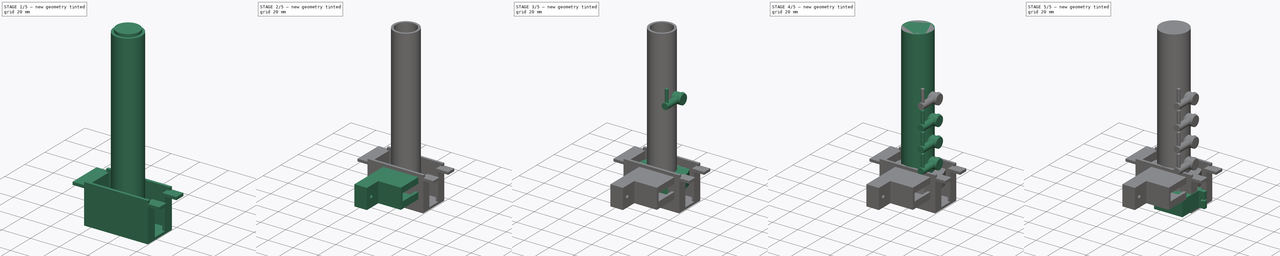
[diagram: build sequence overview — one tinted view per stage of 5, left to right]
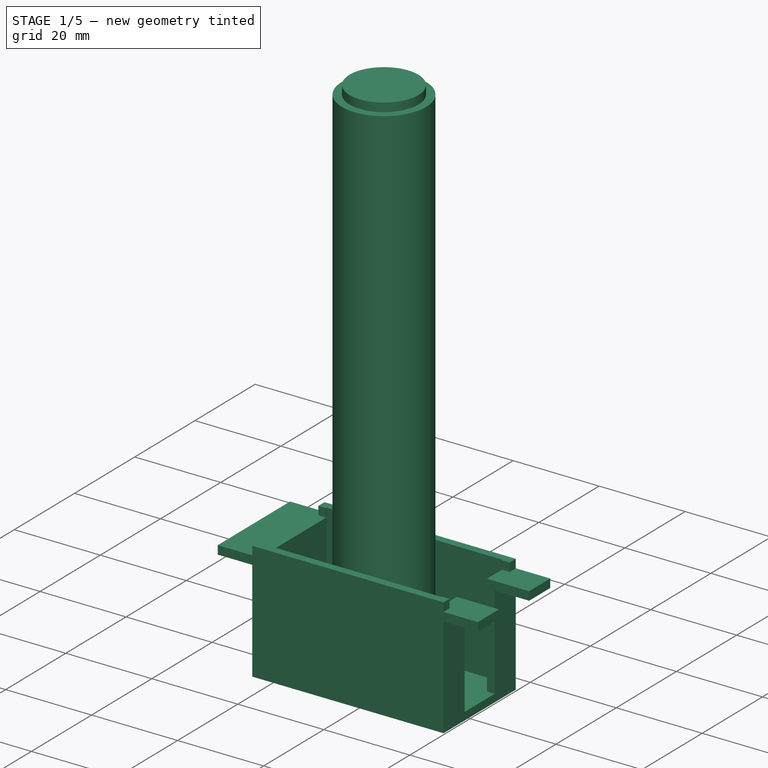
[diagram: stage 1 of 5 — iso view after this stage's code; geometry added in this stage tinted green]
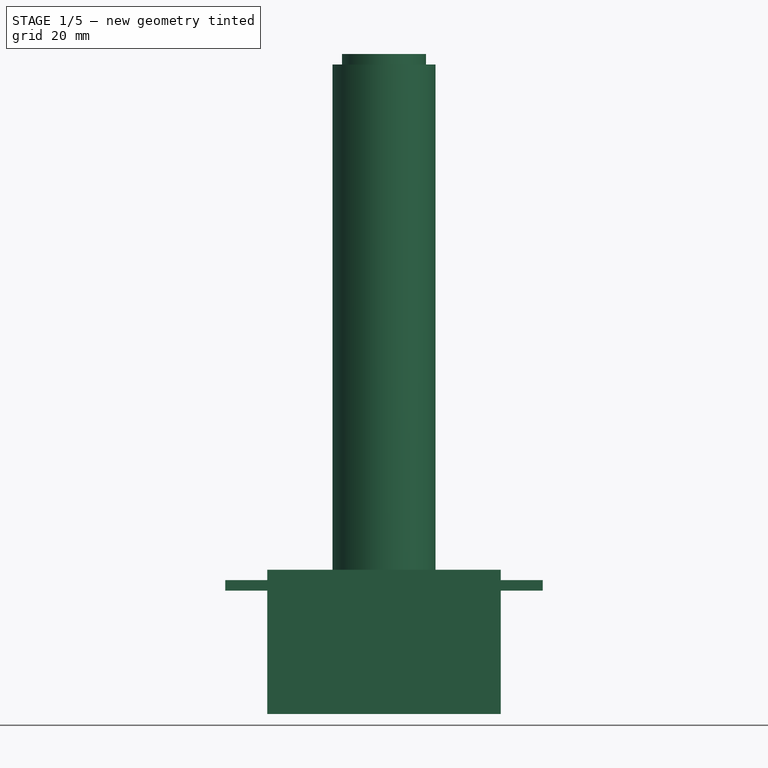
[diagram: stage 1 of 5 — front view after this stage's code; geometry added in this stage tinted green]
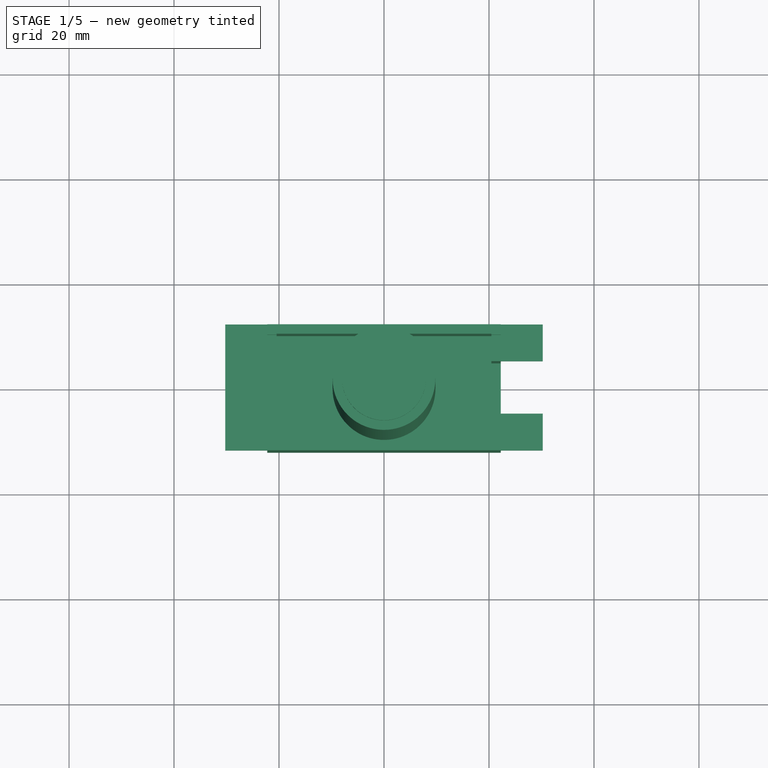
[diagram: stage 1 of 5 — top view after this stage's code; geometry added in this stage tinted green]
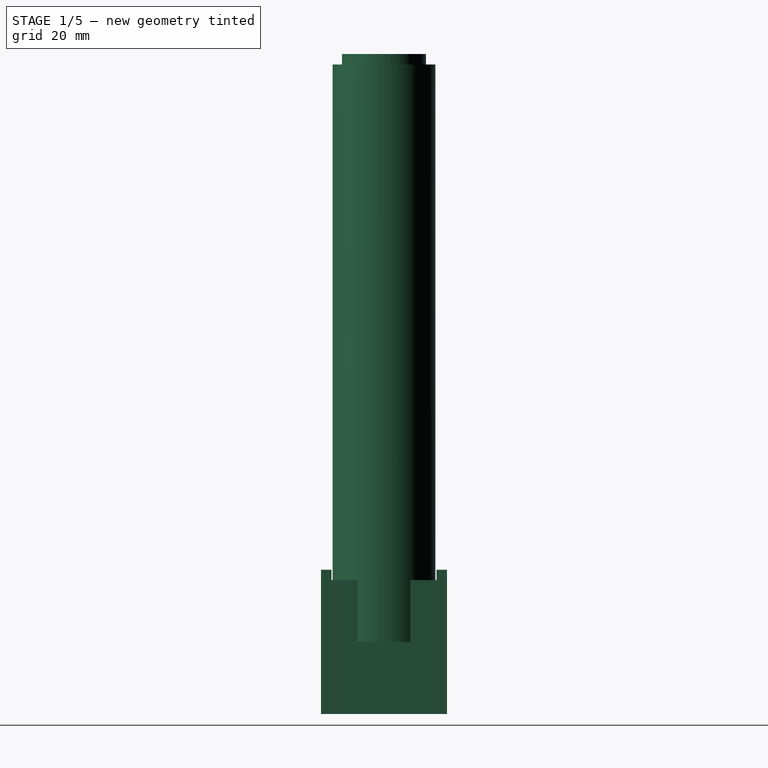
[diagram: stage 1 of 5 — right view after this stage's code; geometry added in this stage tinted green]
FCSTD DOCUMENT  (FreeCAD 0.20R29177 +426 (Git))
Label: servo_holders
License: All rights reserved
LicenseURL: http://en.wikipedia.org/wiki/All_rights_reserved
objects: Part::Cylinder×16, Sketcher::SketchObject×14, Part::Cut×10, Part::Box×10, Part::Feature×8, Part::Extrusion×7, Part::MultiFuse×6, Spreadsheet::Sheet×1, App::DocumentObjectGroup×1, App::Link×1, Part::Chamfer×1, Part::Fuse×1
note: 73 computed .brp shape members not serialized (recipe doc carries the construction recipe); baked Part::Feature solids carry a one-line shape summary decoded from their .brp

FEATURE [Part::Feature] _motor_servo002  label="motor servo002"
  Placement = pos=(7.8,-28.4,37.43) rot=(0,0,1;0rad)
  shape: bbox 32.1 x 32.1 x 12.3 mm, 36 faces, 4 solids (baked)
FEATURE [Part::Feature] _motor_servo003  label="motor servo003"
  Placement = pos=(7.8,-28.4,53.07) rot=(0,0,1;0rad)
  shape: bbox 32.1 x 32.1 x 12.3 mm, 36 faces, 4 solids (baked)
FEATURE [Part::Feature] _motor_servo004  label="motor servo004"
  Placement = pos=(7.8,-28.4,68.71) rot=(0,0,1;0rad)
  shape: bbox 32.1 x 32.1 x 12.3 mm, 36 faces, 4 solids (baked)
FEATURE [Part::Cylinder] Cylinder013  label="negative"
  Angle = 360
  AttacherType = Attacher::AttachEngine3D
  FirstAngle = 0
  Height = 110
  Placement = pos=(0,0,2) rot=(0,0,1;0rad)
  Radius = 8
  SecondAngle = 0
FEATURE [Part::Cylinder] Cylinder015  label="main_axis002"
  Angle = 360
  AttacherType = Attacher::AttachEngine3D
  FirstAngle = 0
  Height = 110
  Radius = 9.8
  SecondAngle = 0
FEATURE [Part::Box] cube
  AttacherType = Attacher::AttachEngine3D
  Height = 27.5
  Length = 44.5
  Placement = pos=(-22.25,-12,-13.75) rot=(0,0,1;0rad)
  Width = 24
FEATURE [Part::Box] cube001
  AttacherType = Attacher::AttachEngine3D
  Height = 2
  Length = 60.5
  Placement = pos=(-30.25,-12,9.75) rot=(0,0,1;0rad)
  Width = 24
FEATURE [Part::Fuse] union
  Base = -> cube
  Tool = -> cube001
FEATURE [Part::Box] cube002
  AttacherType = Attacher::AttachEngine3D
  Height = 27.9
  Length = 40.9
  Placement = pos=(-20.45,-10.2,-11.95) rot=(0,0,1;0rad)
  Width = 20.4
FEATURE [Part::Box] cube003
  AttacherType = Attacher::AttachEngine3D
  Height = 3
  Length = 60.5
  Placement = pos=(-30.25,-10,11.75) rot=(0,0,1;0rad)
  Width = 20
FEATURE [Part::Box] cube004
  AttacherType = Attacher::AttachEngine3D
  Height = 47.5
  Length = 30
  Placement = pos=(5,-5,-11.95) rot=(0,0,1;0rad)
  Width = 10
FEATURE [Part::MultiFuse] union001
  Shapes = -> [cube002,cube003,cube004]
FEATURE [Part::Cut] difference
  Base = -> union
  Tool = -> union001
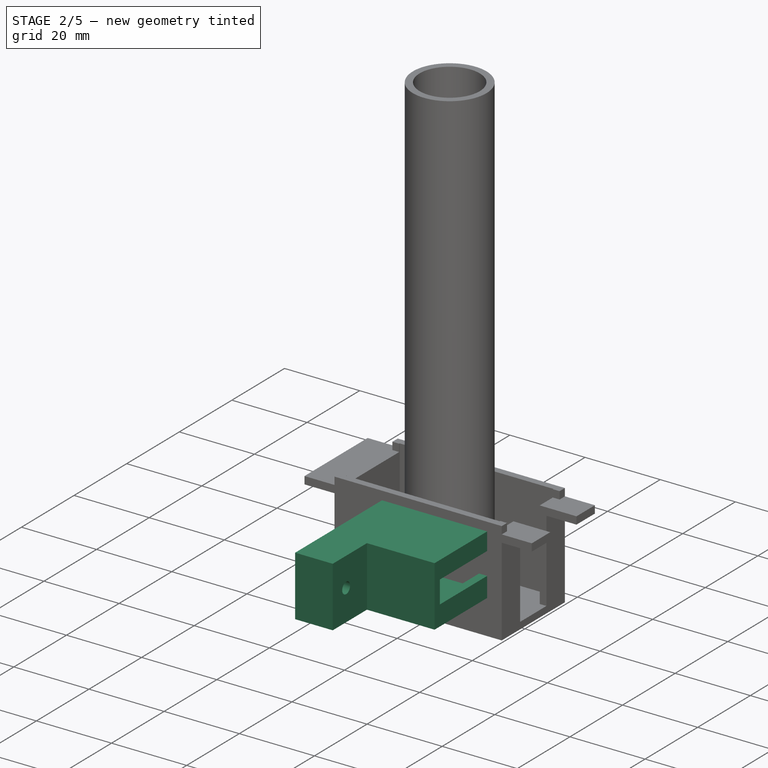
[diagram: stage 2 of 5 — iso view after this stage's code; geometry added in this stage tinted green]
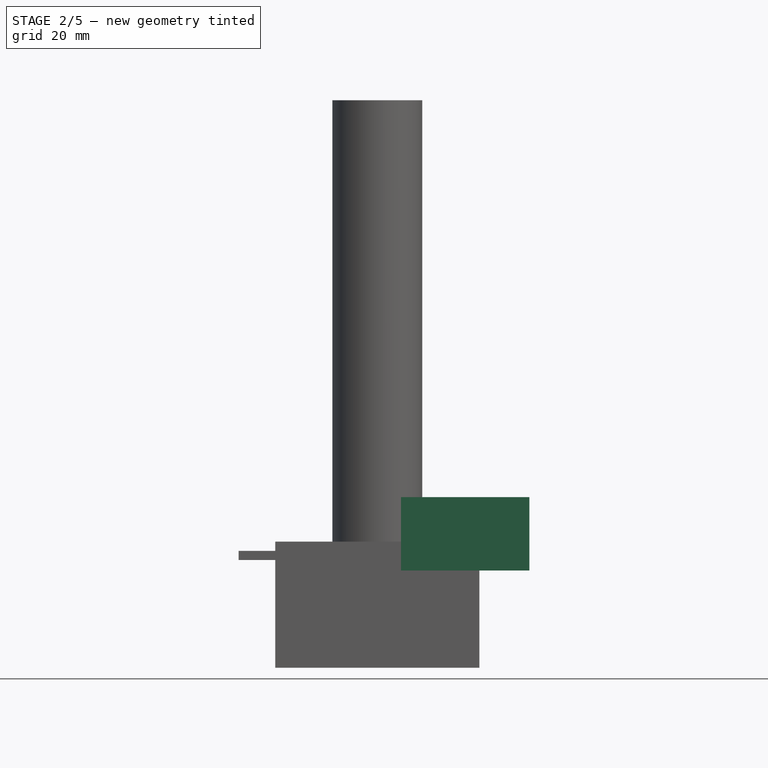
[diagram: stage 2 of 5 — front view after this stage's code; geometry added in this stage tinted green]
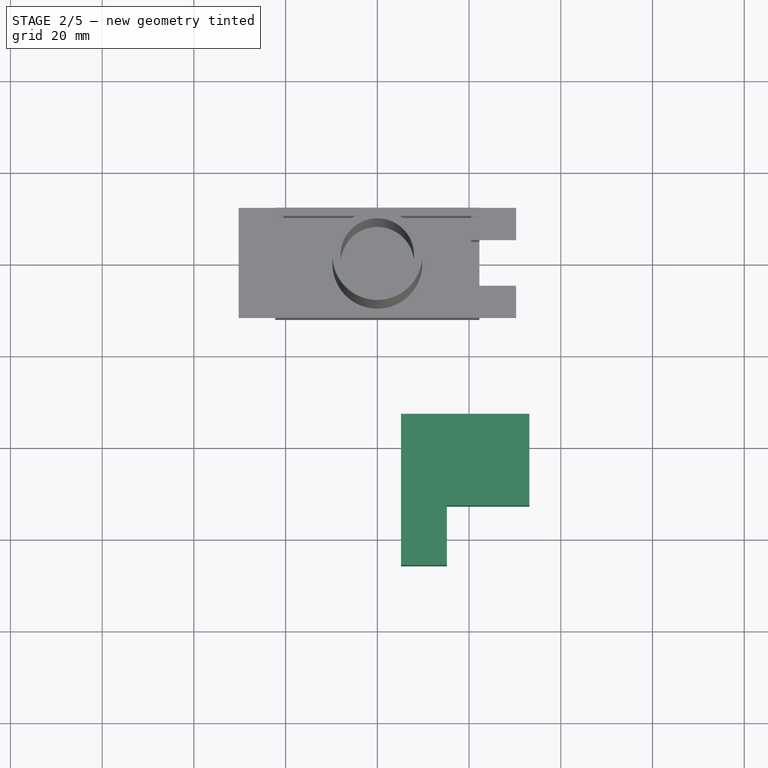
[diagram: stage 2 of 5 — top view after this stage's code; geometry added in this stage tinted green]
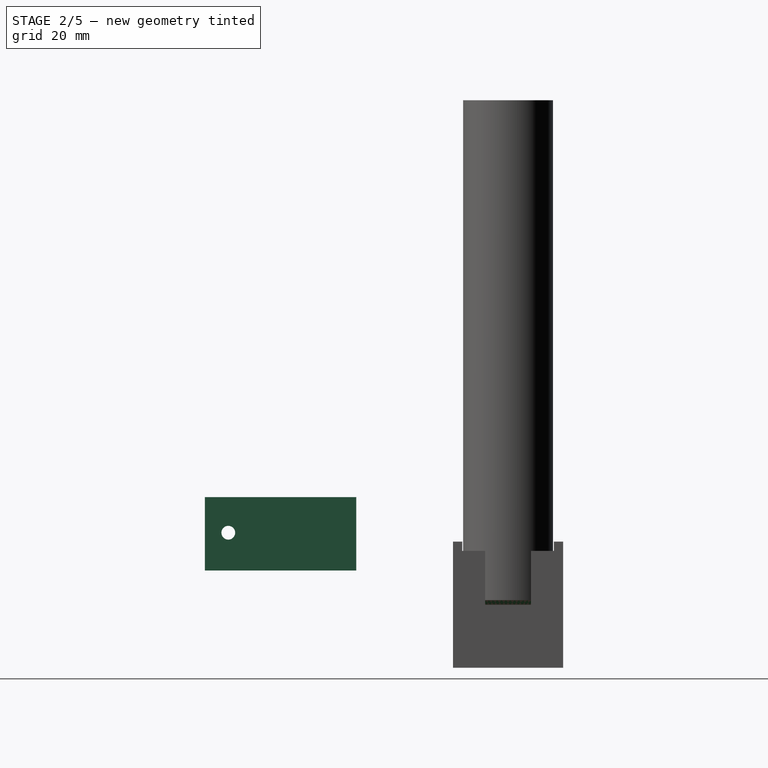
[diagram: stage 2 of 5 — right view after this stage's code; geometry added in this stage tinted green]
FEATURE [Part::Box] Box  label="Cube"
  AttacherType = Attacher::AttachEngine3D
  Height = 16
  Length = 28
  Placement = pos=(5.15,-53.1,7.45) rot=(0,0,1;0rad)
  Width = 20
FEATURE [Part::Box] Box001  label="Cube001"
  AttacherType = Attacher::AttachEngine3D
  Height = 6
  Length = 6
  Placement = pos=(30.15,-51.1,12.75) rot=(0,0,1;0rad)
  Width = 21
FEATURE [Part::Cut] Cut001
  Base = -> Box
  Tool = -> Box001
FEATURE [Part::Feature] Part__Feature  label="MakerBeam Profile 10x10x350 v13"
  shape: bbox 350.3 x 10 x 10 mm, 115 faces (baked)
FEATURE [Part::Feature] Part__Feature001  label="MakerBeam Profile 10x10x350 v014"
  Placement = pos=(0,-61,0) rot=(0,-1,0;1.5708rad)
  shape: bbox 10 x 10 x 350.3 mm, 115 faces (baked)
FEATURE [Part::Feature] Part__Feature002  label="MakerBeam Profile 10x10x350 v015"
  Placement = pos=(0,-350,0) rot=(0,0,1;1.5708rad)
  shape: bbox 10 x 350.3 x 10 mm, 115 faces (baked)
FEATURE [Part::Box] Box003  label="Cube003"
  AttacherType = Attacher::AttachEngine3D
  Height = 16
  Length = 10
  Placement = pos=(5.15,-66.1,7.45) rot=(0,0,1;0rad)
  Width = 14.5
FEATURE [Part::Feature] BOLTS_part  label="Hex socket countersunk head screw M3 20.0"
  Placement = pos=(22,-61,15.7) rot=(0,-1,0;1.5708rad)
  shape: bbox 20 x 6 x 6 mm, 12 faces (baked)
FEATURE [Part::Cut] Cut004
  Base = -> Box003
  Tool = -> BOLTS_part
FEATURE [Part::Box] Box004  label="Cube004"
  AttacherType = Attacher::AttachEngine3D
  Height = 13
  Length = 23.6
  Placement = pos=(7.4,-51.1,9.2) rot=(0,0,1;0rad)
  Width = 30
FEATURE [Part::Cut] Cut005
  Base = -> Cut001
  Tool = -> Box004
FEATURE [Part::MultiFuse] Fusion004
  Shapes = -> [Cut004,Cut005]
FEATURE [App::Link] Link  label="main_axis003"
  LinkedObject = -> Cylinder015
FEATURE [Part::Cut] Cut
  Base = -> Link
  Tool = -> Cylinder013
FEATURE [Part::Chamfer] Chamfer  label="central_tube"
  Base = -> Cut
  Edges = 1 edges r=1: [Edge3]
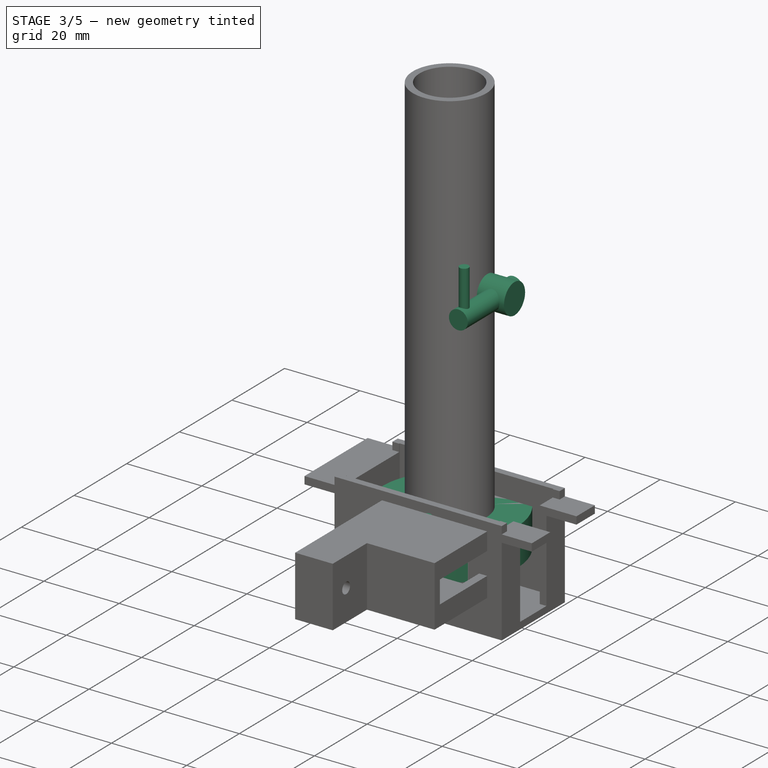
[diagram: stage 3 of 5 — iso view after this stage's code; geometry added in this stage tinted green]
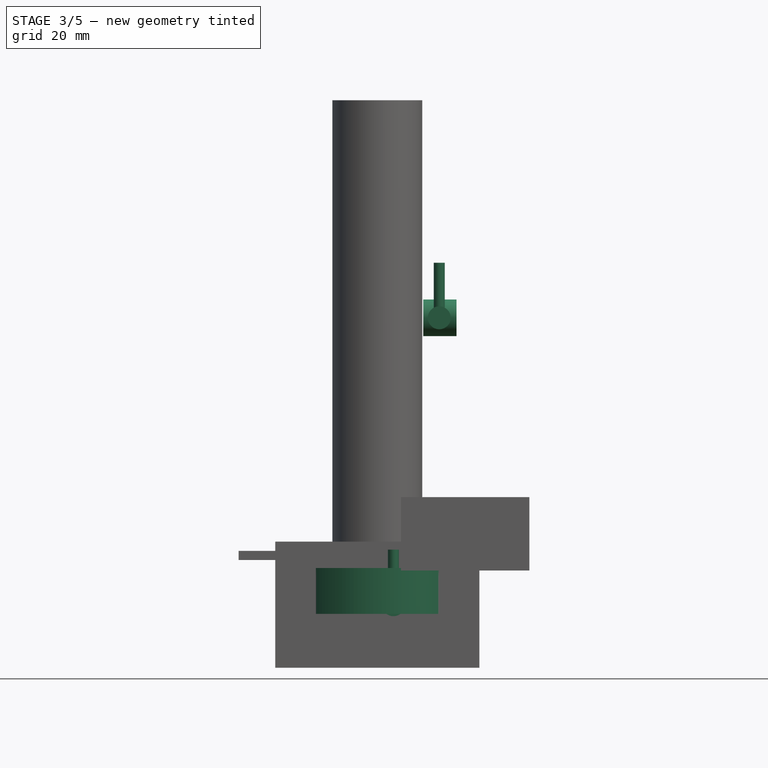
[diagram: stage 3 of 5 — front view after this stage's code; geometry added in this stage tinted green]
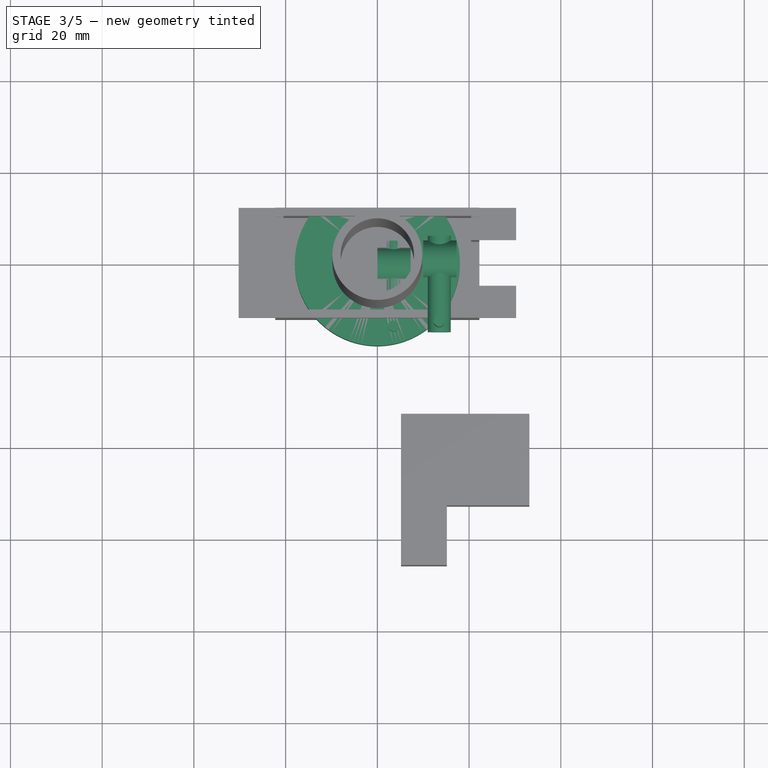
[diagram: stage 3 of 5 — top view after this stage's code; geometry added in this stage tinted green]
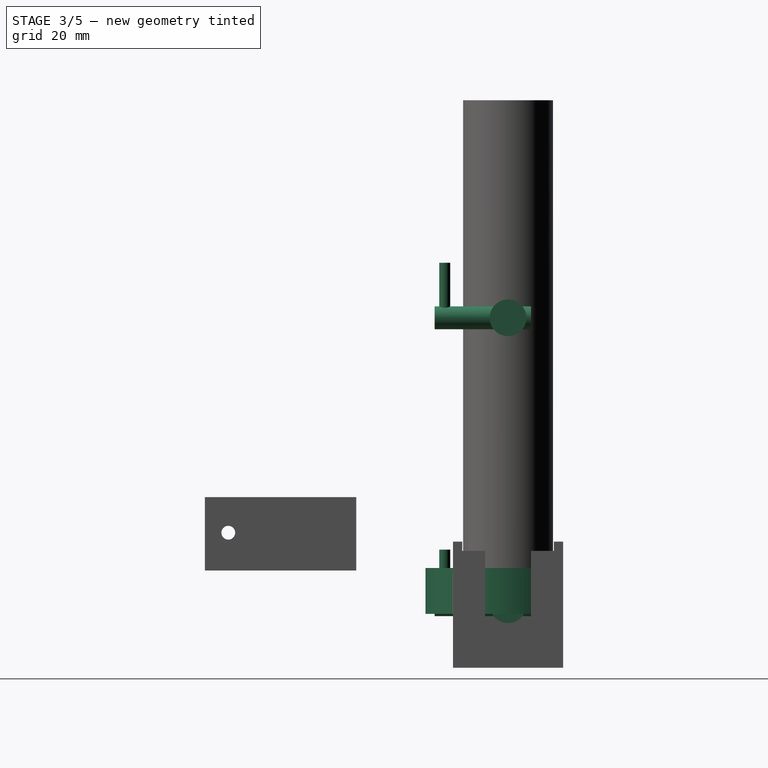
[diagram: stage 3 of 5 — right view after this stage's code; geometry added in this stage tinted green]
FEATURE [Part::Cylinder] Cylinder007
  Angle = 360
  AttacherType = Attacher::AttachEngine3D
  FirstAngle = 0
  Height = 7.26
  Placement = pos=(0,0,0) rot=(0,1,0;1.5708rad)
  Radius = 4
  SecondAngle = 0
FEATURE [Part::Cylinder] Cylinder008
  Angle = 360
  AttacherType = Attacher::AttachEngine3D
  FirstAngle = 0
  Height = 12
  Placement = pos=(3.5,-13.8,0) rot=(1,0,0;0rad)
  Radius = 1.2
  SecondAngle = 0
FEATURE [Part::Cylinder] Cylinder009
  Angle = 360
  AttacherType = Attacher::AttachEngine3D
  FirstAngle = 0
  Height = 21
  Placement = pos=(3.5,5,0) rot=(1,0,0;1.5708rad)
  Radius = 2.5
  SecondAngle = 0
FEATURE [Part::Cylinder] Cylinder010
  Angle = 360
  AttacherType = Attacher::AttachEngine3D
  FirstAngle = 0
  Height = 7.26
  Placement = pos=(0,0,0) rot=(0,1,0;1.5708rad)
  Radius = 4
  SecondAngle = 0
FEATURE [Part::Cylinder] Cylinder011
  Angle = 360
  AttacherType = Attacher::AttachEngine3D
  FirstAngle = 0
  Height = 12
  Placement = pos=(3.5,-13.8,0) rot=(1,0,0;0rad)
  Radius = 1.2
  SecondAngle = 0
FEATURE [Part::Cylinder] Cylinder012
  Angle = 360
  AttacherType = Attacher::AttachEngine3D
  FirstAngle = 0
  Height = 21
  Placement = pos=(3.5,5,0) rot=(1,0,0;1.5708rad)
  Radius = 2.5
  SecondAngle = 0
FEATURE [Part::MultiFuse] Fusion003  label="valve003"
  Placement = pos=(10,0,62.56) rot=(0,0,1;0rad)
  Shapes = -> [Cylinder010,Cylinder012,Cylinder011]
FEATURE [Part::Cylinder] Cylinder014  label="Cylinder"
  Angle = 360
  AttacherType = Attacher::AttachEngine3D
  FirstAngle = 0
  Height = 10
  Placement = pos=(0,0,-2) rot=(0,0,1;0rad)
  Radius = 18
  SecondAngle = 0
FEATURE [Part::Cut] Cut002  label="main_axis_fit"
  Base = -> Cylinder014
  Tool = -> Cylinder015
FEATURE [Part::Box] Box002  label="Cube002"
  AttacherType = Attacher::AttachEngine3D
  Height = 15
  Length = 10
  Placement = pos=(-22,-18.5,-3) rot=(0,0,1;0rad)
  Width = 35
FEATURE [Part::Cut] Cut003  label="main_axis_holder"
  Base = -> Cut002
  Placement = pos=(0,0,0) rot=(0,0,-1;1.5708rad)
  Tool = -> Box002
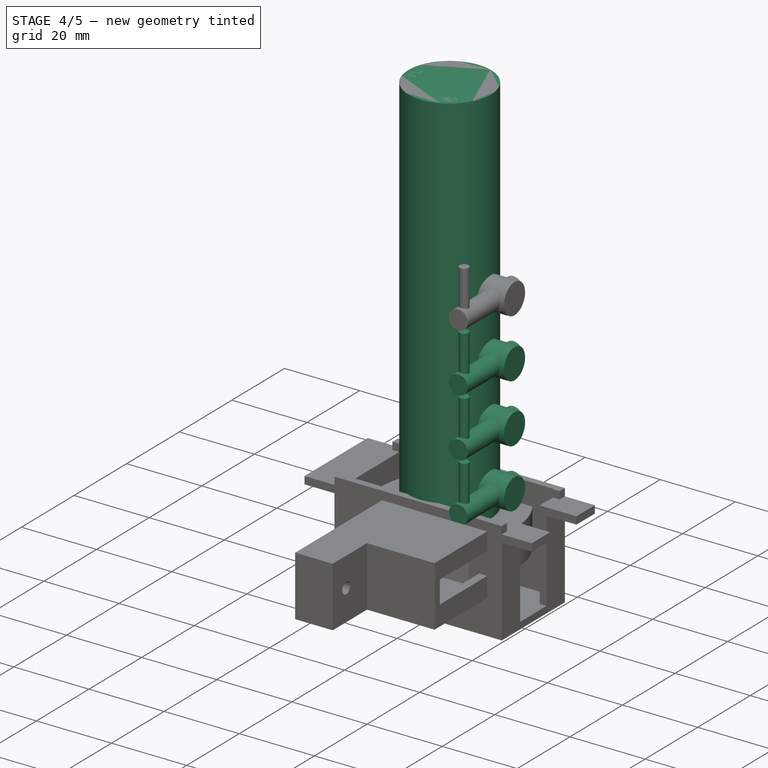
[diagram: stage 4 of 5 — iso view after this stage's code; geometry added in this stage tinted green]
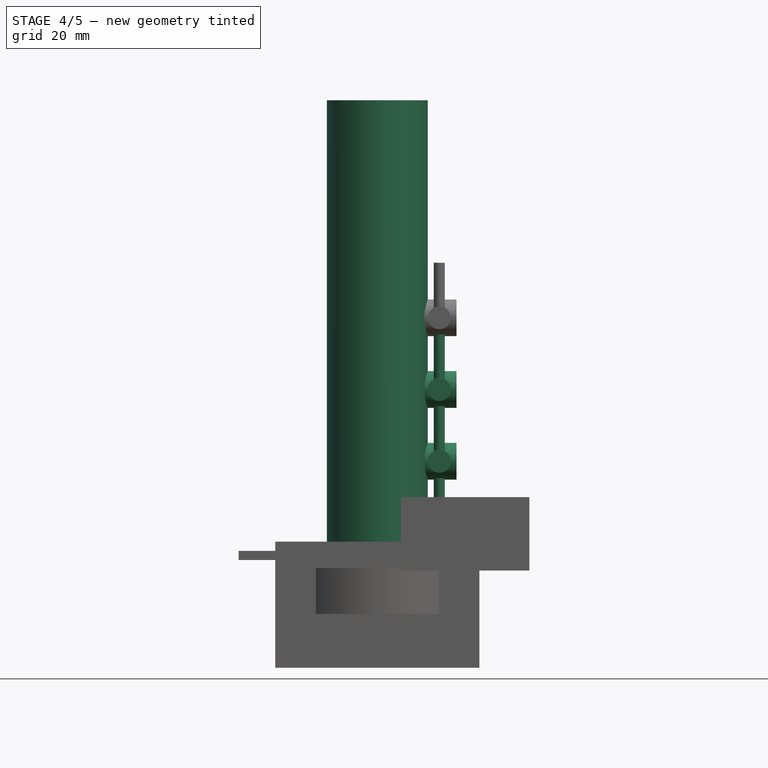
[diagram: stage 4 of 5 — front view after this stage's code; geometry added in this stage tinted green]
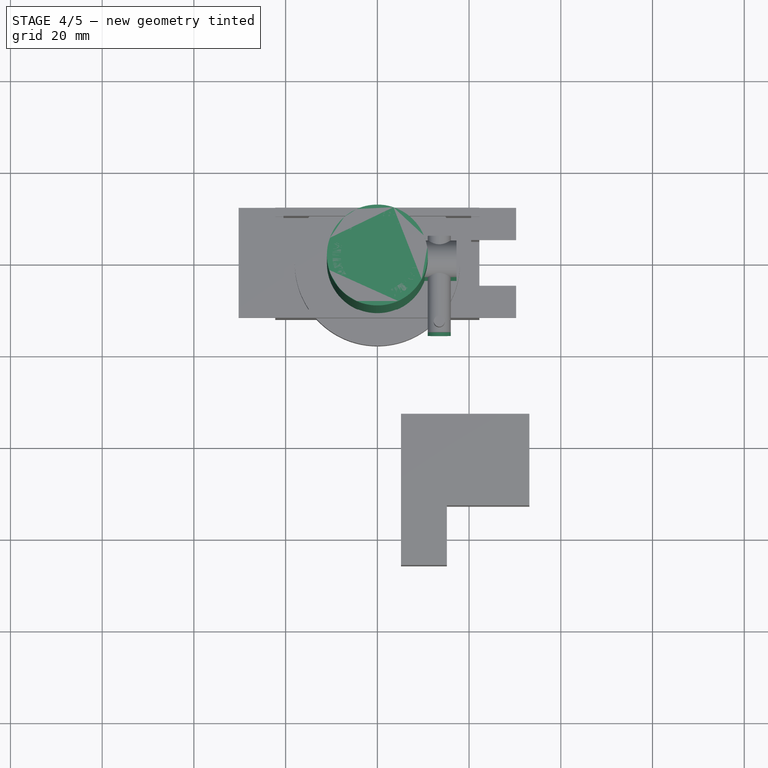
[diagram: stage 4 of 5 — top view after this stage's code; geometry added in this stage tinted green]
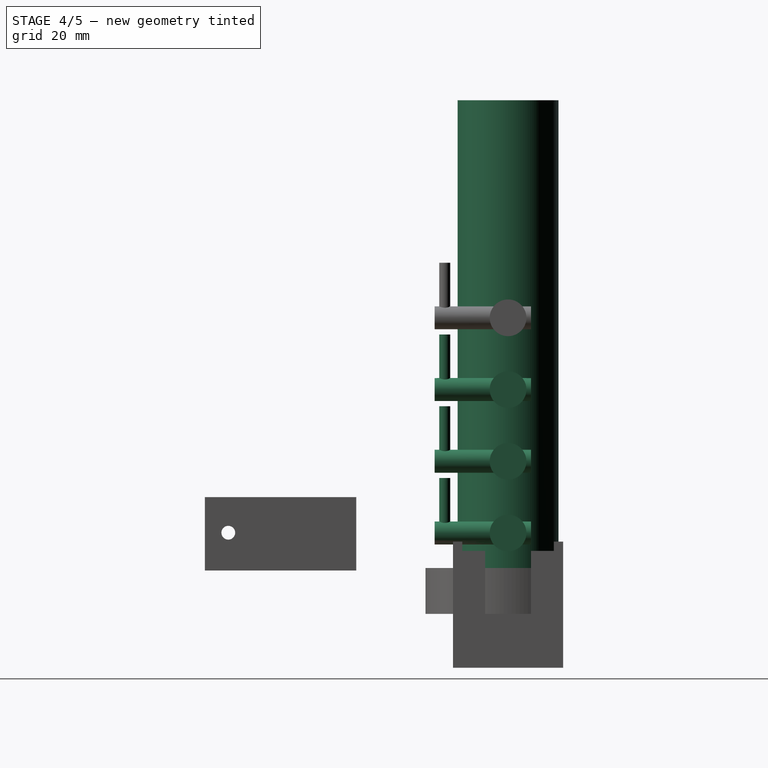
[diagram: stage 4 of 5 — right view after this stage's code; geometry added in this stage tinted green]
FEATURE [App::DocumentObjectGroup] _motor_servo  label="motor servo"
  Group = -> [Sketch1,Extrusion1,Sketch2,Extrusion2,Sketch3,Extrusion3,Sketch4,Extrusion4,Sketch5,Extrusion5,Sketch6,Extrusion6,Sketch7,Extrusion7]
FEATURE [Part::Cylinder] Cylinder  label="positive"
  Angle = 360
  AttacherType = Attacher::AttachEngine3D
  FirstAngle = 0
  Height = 110
  Radius = 11
  SecondAngle = 0
FEATURE [Part::Feature] _motor_servo001  label="motor servo001"
  Placement = pos=(7.8,-28.4,21.79) rot=(0,0,1;0rad)
  shape: bbox 32.1 x 32.1 x 12.3 mm, 36 faces, 4 solids (baked)
FEATURE [Part::Cylinder] Cylinder001
  Angle = 360
  AttacherType = Attacher::AttachEngine3D
  FirstAngle = 0
  Height = 7.26
  Placement = pos=(0,0,0) rot=(0,1,0;1.5708rad)
  Radius = 4
  SecondAngle = 0
FEATURE [Part::Cylinder] Cylinder002
  Angle = 360
  AttacherType = Attacher::AttachEngine3D
  FirstAngle = 0
  Height = 21
  Placement = pos=(3.5,5,0) rot=(1,0,0;1.5708rad)
  Radius = 2.5
  SecondAngle = 0
FEATURE [Part::Cylinder] Cylinder003
  Angle = 360
  AttacherType = Attacher::AttachEngine3D
  FirstAngle = 0
  Height = 12
  Placement = pos=(3.5,-13.8,0) rot=(1,0,0;0rad)
  Radius = 1.2
  SecondAngle = 0
FEATURE [Part::MultiFuse] Fusion  label="valve"
  Placement = pos=(10,0,15.64) rot=(0,0,1;0rad)
  Shapes = -> [Cylinder001,Cylinder002,Cylinder003]
FEATURE [Part::Cylinder] Cylinder004
  Angle = 360
  AttacherType = Attacher::AttachEngine3D
  FirstAngle = 0
  Height = 7.26
  Placement = pos=(0,0,0) rot=(0,1,0;1.5708rad)
  Radius = 4
  SecondAngle = 0
FEATURE [Part::Cylinder] Cylinder005
  Angle = 360
  AttacherType = Attacher::AttachEngine3D
  FirstAngle = 0
  Height = 12
  Placement = pos=(3.5,-13.8,0) rot=(1,0,0;0rad)
  Radius = 1.2
  SecondAngle = 0
FEATURE [Part::Cylinder] Cylinder006
  Angle = 360
  AttacherType = Attacher::AttachEngine3D
  FirstAngle = 0
  Height = 21
  Placement = pos=(3.5,5,0) rot=(1,0,0;1.5708rad)
  Radius = 2.5
  SecondAngle = 0
FEATURE [Part::MultiFuse] Fusion001  label="valve001"
  Placement = pos=(10,0,31.28) rot=(0,0,1;0rad)
  Shapes = -> [Cylinder004,Cylinder006,Cylinder005]
FEATURE [Part::MultiFuse] Fusion002  label="valve002"
  Placement = pos=(10,0,46.92) rot=(0,0,1;0rad)
  Shapes = -> [Cylinder007,Cylinder009,Cylinder008]
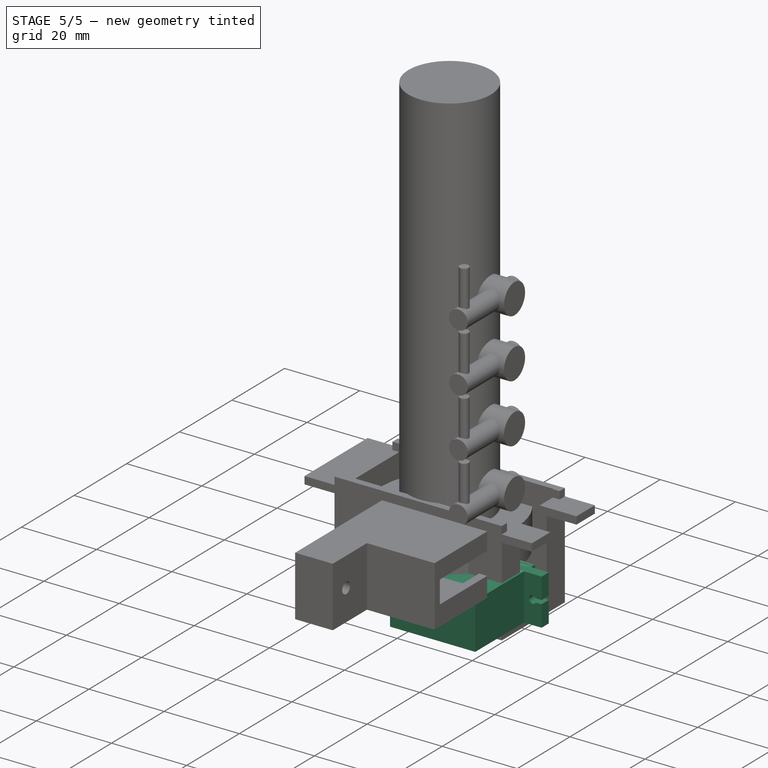
[diagram: stage 5 of 5 — iso view after this stage's code; geometry added in this stage tinted green]
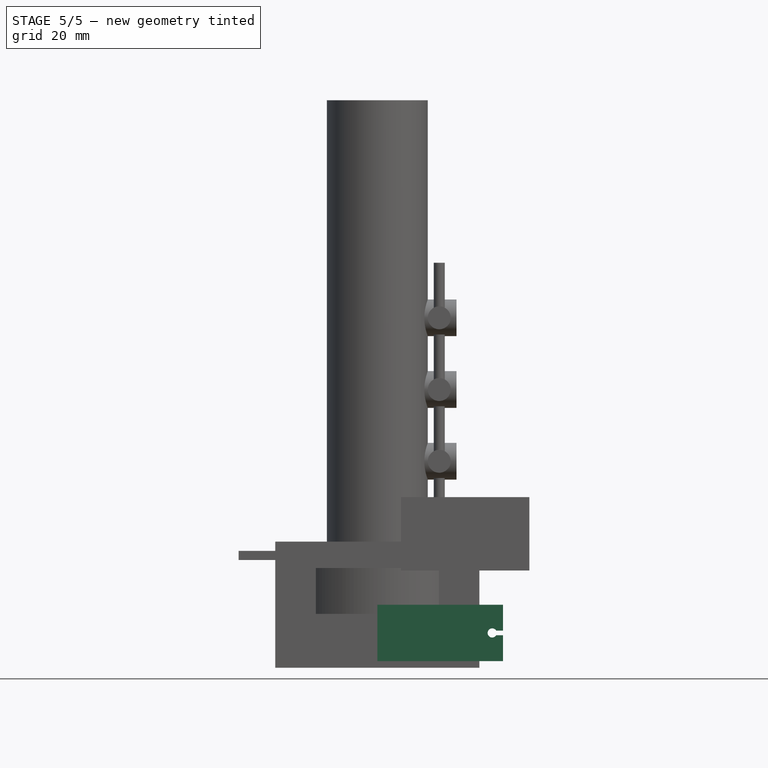
[diagram: stage 5 of 5 — front view after this stage's code; geometry added in this stage tinted green]
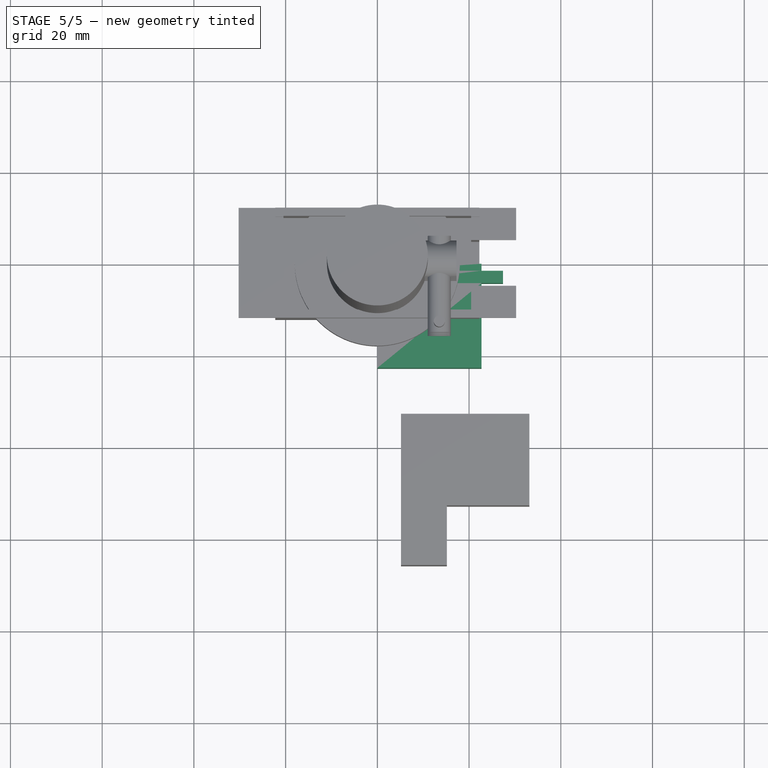
[diagram: stage 5 of 5 — top view after this stage's code; geometry added in this stage tinted green]
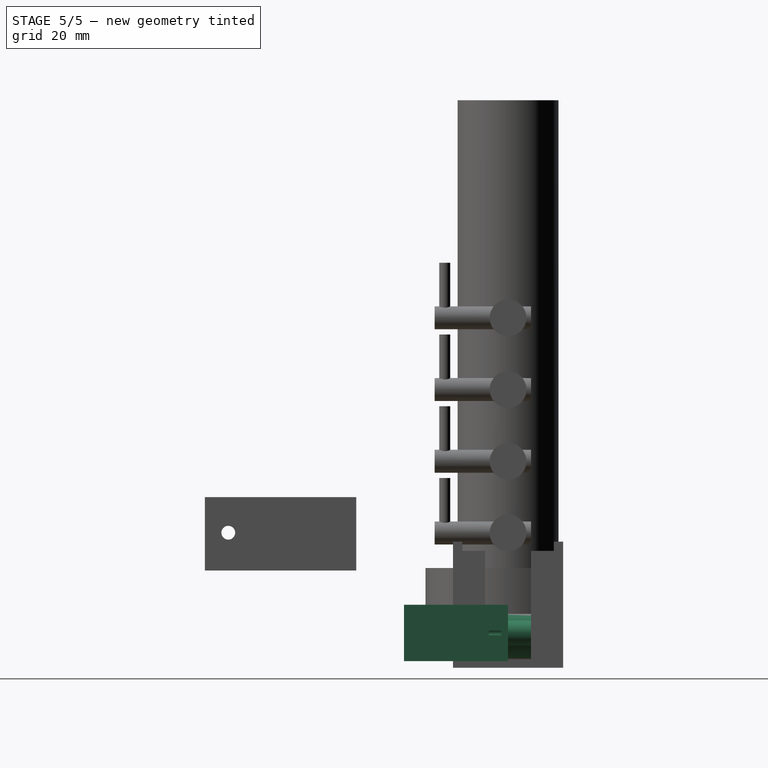
[diagram: stage 5 of 5 — right view after this stage's code; geometry added in this stage tinted green]
FEATURE [Spreadsheet::Sheet] Parameters
  cells = A1=Parameter; B1=Value; C1=Fromula; D1=Tolerance; E1=Comment; A2=d0; B2(d0_)=22.7; C2==22.7mm; A3=d1; B3(d1_)=22.7; C3==22.7mm; A4=d10; B4(d10_)=12.3; C4==12.3mm; A5=d11; B5(d11_)=0; C5==0°; A6=d12; B6(d12_)=11.4; C6==11.4mm; A7=d13; B7(d13_)=5.7; C7==5.7mm; A8=d15; B8(d15_)=12.3; C8==12.3mm; A9=d16; B9(d16_)=5.4; C9==5.4mm; A10=d17; B10(d17_)=14.3; C10==14.3mm; A11=d18; B11(d18_)=5.7; C11==5.7mm; A12=d19; B12(d19_)=0; C12==0°; A13=d2; B13(d2_)=1.5; C13==1.5mm; A14=d20; B14(d20_)=4; C14==4mm; A15=d21; B15(d21_)=1; C15==1mm; A16=d22; B16(d22_)=0; C16==0°; A17=d23; B17(d23_)=4.7; C17==4.7mm; A18=d24; B18(d24_)=2.7; C18==2.7mm; A19=d25; B19(d25_)=0; C19==0°; A20=d26; B20(d26_)=1.8; C20==1.8mm; A21=d27; B21(d27_)=0.3; C21==0.3mm; A22=d28; B22(d28_)=0; C22==0°; A23=d29; B23(d29_)=1.5; C23==1.5mm; A24=d3; B24(d3_)=4.7; C24==4.7mm; A25=d30; B25(d30_)=2; C25==2mm; A26=d31; B26(d31_)=0; C26==0°; A27=d32; B27(d32_)=2; C27==2mm; A28=d33; B28(d33_)=0; C28==0mm; A29=d34; B29(d34_)=2.7; C29==2.7mm; A30=d35; B30(d35_)=0; C30==0mm; A31=d36; B31(d36_)=0.5; C31==0.5mm; A32=d4; B32(d4_)=2.7; C32==2.7mm; A33=d5; B33(d5_)=12.3; C33==12.3mm; A34=d6; B34(d6_)=0; C34==0°; A35=d7; B35(d7_)=2; C35==2mm
FEATURE [Sketcher::SketchObject] Sketch1
  FullyConstrained = false
  sketch-geometry (12):
    g0: LineSegment StartX=0 StartY=0 StartZ=0 EndX=22.6979 EndY=0 EndZ=0
    g1: LineSegment StartX=22.6979 StartY=0 StartZ=0 EndX=22.6979 EndY=-22.691 EndZ=0
    g2: LineSegment StartX=22.6979 StartY=-22.691 StartZ=0 EndX=0 EndY=-22.691 EndZ=0
    g3: LineSegment StartX=0 StartY=-22.7 StartZ=0 EndX=0 EndY=0 EndZ=0
    g4: LineSegment StartX=22.6979 StartY=-1.5 StartZ=0 EndX=27.4 EndY=-1.5 EndZ=0
    g5: LineSegment StartX=27.4 StartY=-1.5 StartZ=0 EndX=27.4 EndY=-4.2 EndZ=0
    g6: LineSegment StartX=27.4 StartY=-4.20051 StartZ=0 EndX=22.9019 EndY=-4.20051 EndZ=0
    g7: LineSegment StartX=22.6979 StartY=-4.2 StartZ=0 EndX=22.6979 EndY=-1.5 EndZ=0
    g8: LineSegment StartX=11.35 StartY=0 StartZ=0 EndX=11.35 EndY=-4.2 EndZ=0
    g9: LineSegment StartX=0 StartY=-1.5 StartZ=0 EndX=-4.7 EndY=-1.5 EndZ=0
    g10: LineSegment StartX=-4.7 StartY=-1.5 StartZ=0 EndX=-4.7 EndY=-4.2 EndZ=0
    g11: LineSegment StartX=-4.7 StartY=-4.2 StartZ=0 EndX=0 EndY=-4.2 EndZ=0
  constraints (13):
    c: Perpendicular(g0,g1)
    c: Parallel(g0,g2)
    c: Parallel(g1,g3)
    c: Horizontal(g0)
    c: Perpendicular(g4,g5)
    c: Parallel(g4,g6)
    c: Parallel(g5,g7)
    c: Horizontal(g4)
    c: Vertical(g8)
    c: Coincident(g-1,g0)
    c: Coincident(g-1,g3)
    c: PointOnObject(g4,g1)
    c: Coincident(g4,g7)
FEATURE [Sketcher::SketchObject] Sketch1_bp
  FullyConstrained = false
  sketch-geometry (12):
    g0: LineSegment StartX=22.7 StartY=-22.7 StartZ=0 EndX=22.7 EndY=-4.2 EndZ=0
    g1: LineSegment StartX=22.7 StartY=-4.2 StartZ=0 EndX=27.4 EndY=-4.2 EndZ=0
    g2: LineSegment StartX=27.4 StartY=-4.2 StartZ=0 EndX=27.4 EndY=-1.5 EndZ=0
    g3: LineSegment StartX=27.4 StartY=-1.5 StartZ=0 EndX=22.7 EndY=-1.5 EndZ=0
    g4: LineSegment StartX=22.7 StartY=-1.5 StartZ=0 EndX=22.7 EndY=0 EndZ=0
    g5: LineSegment StartX=22.7 StartY=0 StartZ=0 EndX=0 EndY=0 EndZ=0
    g6: LineSegment StartX=0 StartY=0 StartZ=0 EndX=0 EndY=-1.5 EndZ=0
    g7: LineSegment StartX=0 StartY=-1.5 StartZ=0 EndX=-4.7 EndY=-1.5 EndZ=0
    g8: LineSegment StartX=-4.7 StartY=-1.5 StartZ=0 EndX=-4.7 EndY=-4.2 EndZ=0
    g9: LineSegment StartX=-4.7 StartY=-4.2 StartZ=0 EndX=0 EndY=-4.2 EndZ=0
    g10: LineSegment StartX=0 StartY=-4.2 StartZ=0 EndX=0 EndY=-22.7 EndZ=0
    g11: LineSegment StartX=0 StartY=-22.7 StartZ=0 EndX=22.7 EndY=-22.7 EndZ=0
FEATURE [Part::Extrusion] Extrusion1
  Base = -> Sketch1_bp
  Dir = (0,0,1)
  DirMode = 0
  FaceMakerClass = Part::FaceMakerBullseye
  LengthFwd = 12.3
  LengthRev = 0
  Reversed = true
  Solid = true
  Symmetric = false
  expr: LengthFwd = Parameters.d5_
  expr: TaperAngle = Parameters.d6_
FEATURE [Sketcher::SketchObject] Sketch2
  FullyConstrained = false
  Placement = pos=(22.7,-1.5,0) rot=(-1,0,0;1.5708rad)
  sketch-geometry (13):
    g0: LineSegment StartX=4.7 StartY=12.3 StartZ=0 EndX=0 EndY=12.3 EndZ=0
    g1: LineSegment StartX=4.7 StartY=0 StartZ=0 EndX=4.7 EndY=12.3 EndZ=0
    g2: ArcOfCircle CenterX=2.35 CenterY=6.15 CenterZ=0 NormalX=0 NormalY=0 NormalZ=1 AngleXU=0 Radius=1 StartAngle=0.523599 EndAngle=5.75959
    g3: LineSegment StartX=4.7 StartY=6.15 StartZ=0 EndX=4.7 EndY=6.65 EndZ=0
    g4: LineSegment StartX=4.7 StartY=6.65 StartZ=0 EndX=4.7 EndY=5.65 EndZ=0
    g5: LineSegment StartX=4.7 StartY=6.65 StartZ=0 EndX=3.21603 EndY=6.65 EndZ=0
    g6: LineSegment StartX=4.7 StartY=5.65 StartZ=0 EndX=3.21603 EndY=5.65 EndZ=0
    g7: LineSegment StartX=-22.7 StartY=12.3 StartZ=0 EndX=0 EndY=12.3 EndZ=0
    g8: LineSegment StartX=-11.35 StartY=12.3 StartZ=0 EndX=-11.35 EndY=10.5344 EndZ=0
    g9: LineSegment StartX=-27.4 StartY=6.65 StartZ=0 EndX=-25.916 EndY=6.65 EndZ=0
    g10: LineSegment StartX=-27.4 StartY=5.65 StartZ=0 EndX=-25.916 EndY=5.65 EndZ=0
    g11: ArcOfCircle CenterX=-25.05 CenterY=6.15 CenterZ=0 NormalX=0 NormalY=0 NormalZ=1 AngleXU=0 Radius=1 StartAngle=3.66519 EndAngle=8.90118
    g12: LineSegment StartX=-27.4 StartY=0 StartZ=0 EndX=-27.4 EndY=12.3 EndZ=0
  constraints (8):
    c: Horizontal(g5)
    c: Horizontal(g6)
    c: Diameter(g2) = 2  'd7'
    c: PointOnObject(g3,g1)
    c: Coincident(g3,g4)
    c: Coincident(g3,g5)
    c: PointOnObject(g4,g1)
    c: Coincident(g4,g6)
FEATURE [Sketcher::SketchObject] Sketch2_bp
  FullyConstrained = false
  Placement = pos=(22.7,-1.5,0) rot=(-1,0,0;1.5708rad)
  sketch-geometry (8):
    g0: LineSegment StartX=-25.916 StartY=6.65 StartZ=0 EndX=-27.4 EndY=6.65 EndZ=0
    g1: LineSegment StartX=-27.4 StartY=6.65 StartZ=0 EndX=-27.4 EndY=5.65 EndZ=0
    g2: LineSegment StartX=-27.4 StartY=5.65 StartZ=0 EndX=-25.916 EndY=5.65 EndZ=0
    g3: ArcOfCircle CenterX=-25.05 CenterY=6.15 CenterZ=0 NormalX=0 NormalY=0 NormalZ=1 AngleXU=0 Radius=1 StartAngle=3.66519 EndAngle=8.90118
    g4: LineSegment StartX=3.21603 StartY=5.65 StartZ=0 EndX=4.7 EndY=5.65 EndZ=0
    g5: LineSegment StartX=4.7 StartY=5.65 StartZ=0 EndX=4.7 EndY=6.65 EndZ=0
    g6: LineSegment StartX=4.7 StartY=6.65 StartZ=0 EndX=3.21603 EndY=6.65 EndZ=0
    g7: ArcOfCircle CenterX=2.35 CenterY=6.15 CenterZ=0 NormalX=0 NormalY=0 NormalZ=1 AngleXU=0 Radius=1 StartAngle=0.523599 EndAngle=5.75959
FEATURE [Part::Extrusion] Extrusion2_Cut
  Base = -> Sketch2_bp
  Dir = (0,1,0)
  DirMode = 0
  FaceMakerClass = Part::FaceMakerBullseye
  LengthFwd = 12.3
  LengthRev = 0
  Reversed = true
  Solid = true
  Symmetric = false
  expr: LengthFwd = Parameters.d10_
  expr: TaperAngle = Parameters.d11_
FEATURE [Part::Cut] Extrusion2
  Base = -> Extrusion1
  Tool = -> Extrusion2_Cut
FEATURE [Sketcher::SketchObject] Sketch3
  FullyConstrained = false
  Placement = pos=(0,0,0) rot=(-1,0,0;1.5708rad)
  sketch-geometry (6):
    g0: ArcOfCircle CenterX=5.7 CenterY=6.15 CenterZ=0 NormalX=0 NormalY=0 NormalZ=1 AngleXU=0 Radius=5.7 StartAngle=0.468583 EndAngle=5.8146
    g1: LineSegment StartX=0 StartY=0 StartZ=0 EndX=0 EndY=12.3 EndZ=0
    g2: LineSegment StartX=22.7 StartY=0 StartZ=0 EndX=0 EndY=0 EndZ=0
    g3: LineSegment StartX=0 StartY=0 StartZ=0 EndX=0 EndY=12.3 EndZ=0
    g4: LineSegment StartX=0 StartY=6.15 StartZ=0 EndX=14.4634 EndY=6.15 EndZ=0
    g5: ArcOfCircle CenterX=11.6 CenterY=6.15 CenterZ=0 NormalX=0 NormalY=0 NormalZ=1 AngleXU=0 Radius=2.7 StartAngle=4.40598 EndAngle=8.16039
  constraints (3):
    c: Perpendicular(g3,g4)
    c: Diameter(g0) = 11.4  'd12'
    c: Diameter(g5) = 5.4  'd16'
FEATURE [Sketcher::SketchObject] Sketch3_bp
  FullyConstrained = false
  Placement = pos=(0,0,0) rot=(-1,0,0;1.5708rad)
  sketch-geometry (2):
    g0: ArcOfCircle CenterX=5.7 CenterY=6.15 CenterZ=0 NormalX=0 NormalY=0 NormalZ=1 AngleXU=0 Radius=5.7 StartAngle=0.468583 EndAngle=5.8146
    g1: ArcOfCircle CenterX=11.6 CenterY=6.15 CenterZ=0 NormalX=0 NormalY=0 NormalZ=1 AngleXU=0 Radius=2.7 StartAngle=4.40598 EndAngle=8.16039
FEATURE [Part::Extrusion] Extrusion3
  Base = -> Sketch3_bp
  Dir = (0,1,0)
  DirMode = 0
  FaceMakerClass = Part::FaceMakerBullseye
  LengthFwd = 5.7
  LengthRev = 0
  Solid = true
  Symmetric = false
  expr: LengthFwd = Parameters.d18_
  expr: TaperAngle = Parameters.d19_
FEATURE [Sketcher::SketchObject] Sketch4
  FullyConstrained = false
  Placement = pos=(0,5.7,0) rot=(-1,0,0;1.5708rad)
  sketch-geometry (4):
    g0: LineSegment StartX=0 StartY=0 StartZ=0 EndX=0 EndY=12.3 EndZ=0
    g1: LineSegment StartX=0 StartY=6.15 StartZ=0 EndX=16.0594 EndY=6.15 EndZ=0
    g2: ArcOfCircle CenterX=5.7 CenterY=6.15 CenterZ=0 NormalX=0 NormalY=0 NormalZ=1 AngleXU=0 Radius=5.7 StartAngle=0.468583 EndAngle=5.8146
    g3: Circle CenterX=5.7 CenterY=6.15 CenterZ=0 NormalX=0 NormalY=0 NormalZ=1 AngleXU=0 Radius=2
  constraints (2):
    c: Horizontal(g1)
    c: Diameter(g3) = 4  'd20'
FEATURE [Sketcher::SketchObject] Sketch4_bp
  FullyConstrained = false
  Placement = pos=(0,5.7,0) rot=(-1,0,0;1.5708rad)
  sketch-geometry (1):
    g0: Circle CenterX=5.7 CenterY=6.15 CenterZ=0 NormalX=0 NormalY=0 NormalZ=1 AngleXU=0 Radius=2
FEATURE [Part::Extrusion] Extrusion4
  Base = -> Sketch4_bp
  Dir = (0,1,0)
  DirMode = 0
  FaceMakerClass = Part::FaceMakerBullseye
  LengthFwd = 1
  LengthRev = 0
  Solid = true
  Symmetric = false
  expr: LengthFwd = Parameters.d21_
  expr: TaperAngle = Parameters.d22_
FEATURE [Sketcher::SketchObject] Sketch5
  FullyConstrained = false
  Placement = pos=(5.7,6.7,-6.15) rot=(-1,0,0;1.5708rad)
  sketch-geometry (2):
    g0: Circle CenterX=0 CenterY=0 CenterZ=0 NormalX=0 NormalY=0 NormalZ=1 AngleXU=0 Radius=2
    g1: Circle CenterX=0 CenterY=0 CenterZ=0 NormalX=0 NormalY=0 NormalZ=1 AngleXU=0 Radius=2.35
  constraints (1):
    c: Diameter(g1) = 4.7  'd23'
FEATURE [Sketcher::SketchObject] Sketch5_bp
  FullyConstrained = false
  Placement = pos=(5.7,6.7,-6.15) rot=(-1,0,0;1.5708rad)
  sketch-geometry (1):
    g0: Circle CenterX=0 CenterY=0 CenterZ=0 NormalX=0 NormalY=0 NormalZ=1 AngleXU=0 Radius=2.35
FEATURE [Part::Extrusion] Extrusion5
  Base = -> Sketch5_bp
  Dir = (0,1,0)
  DirMode = 0
  FaceMakerClass = Part::FaceMakerBullseye
  LengthFwd = 2.7
  LengthRev = 0
  Solid = true
  Symmetric = false
  expr: LengthFwd = Parameters.d24_
  expr: TaperAngle = Parameters.d25_
FEATURE [Sketcher::SketchObject] Sketch6
  FullyConstrained = false
  Placement = pos=(5.7,9.4,-6.15) rot=(-1,0,0;1.5708rad)
  sketch-geometry (1):
    g0: Circle CenterX=0 CenterY=0 CenterZ=0 NormalX=0 NormalY=0 NormalZ=1 AngleXU=0 Radius=0.9
FEATURE [Sketcher::SketchObject] Sketch6_bp
  FullyConstrained = false
  Placement = pos=(5.7,9.4,-6.15) rot=(-1,0,0;1.5708rad)
  sketch-geometry (1):
    g0: Circle CenterX=0 CenterY=0 CenterZ=0 NormalX=0 NormalY=0 NormalZ=1 AngleXU=0 Radius=0.9
FEATURE [Part::Extrusion] Extrusion6_Cut
  Base = -> Sketch6_bp
  Dir = (0,1,0)
  DirMode = 0
  FaceMakerClass = Part::FaceMakerBullseye
  LengthFwd = 0.3
  LengthRev = 0
  Reversed = true
  Solid = true
  Symmetric = false
  expr: LengthFwd = Parameters.d27_
  expr: TaperAngle = Parameters.d28_
FEATURE [Part::Cut] Extrusion6
  Base = -> Extrusion5
  Tool = -> Extrusion6_Cut
FEATURE [Sketcher::SketchObject] Sketch7
  FullyConstrained = false
  Placement = pos=(5.7,9.1,-6.15) rot=(-1,0,0;1.5708rad)
  sketch-geometry (1):
    g0: Circle CenterX=0 CenterY=0 CenterZ=0 NormalX=0 NormalY=0 NormalZ=1 AngleXU=0 Radius=0.75
FEATURE [Sketcher::SketchObject] Sketch7_bp
  FullyConstrained = false
  Placement = pos=(5.7,9.1,-6.15) rot=(-1,0,0;1.5708rad)
  sketch-geometry (1):
    g0: Circle CenterX=0 CenterY=0 CenterZ=0 NormalX=0 NormalY=0 NormalZ=1 AngleXU=0 Radius=0.75
FEATURE [Part::Extrusion] Extrusion7_Cut
  Base = -> Sketch7_bp
  Dir = (0,1,0)
  DirMode = 0
  FaceMakerClass = Part::FaceMakerBullseye
  LengthFwd = 2
  LengthRev = 0
  Reversed = true
  Solid = true
  Symmetric = false
  expr: LengthFwd = Parameters.d30_
  expr: TaperAngle = Parameters.d31_
FEATURE [Part::Cut] Extrusion7
  Base = -> Extrusion6
  Tool = -> Extrusion7_Cut
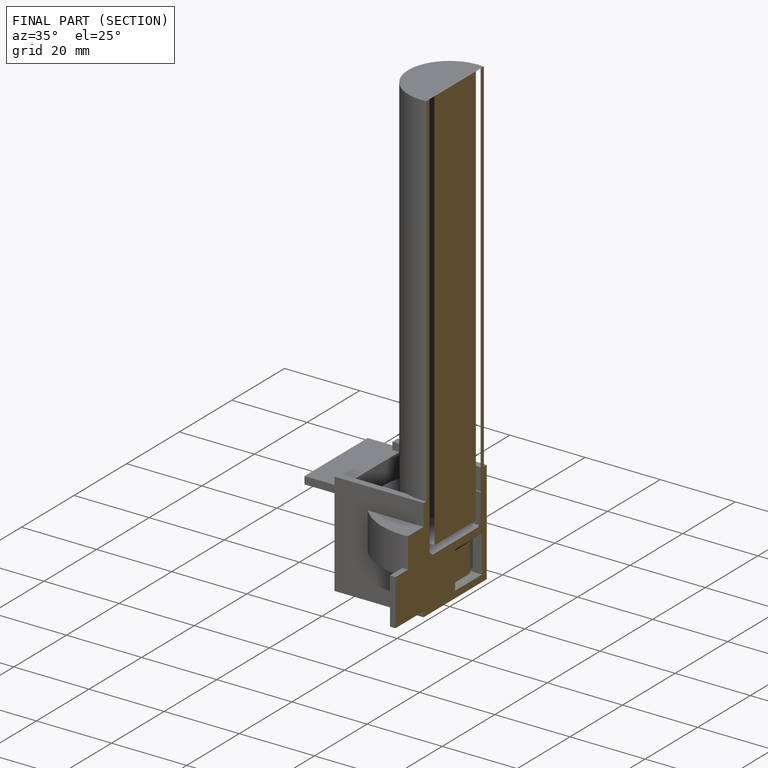
[diagram: finished part — half-section view (interior)]
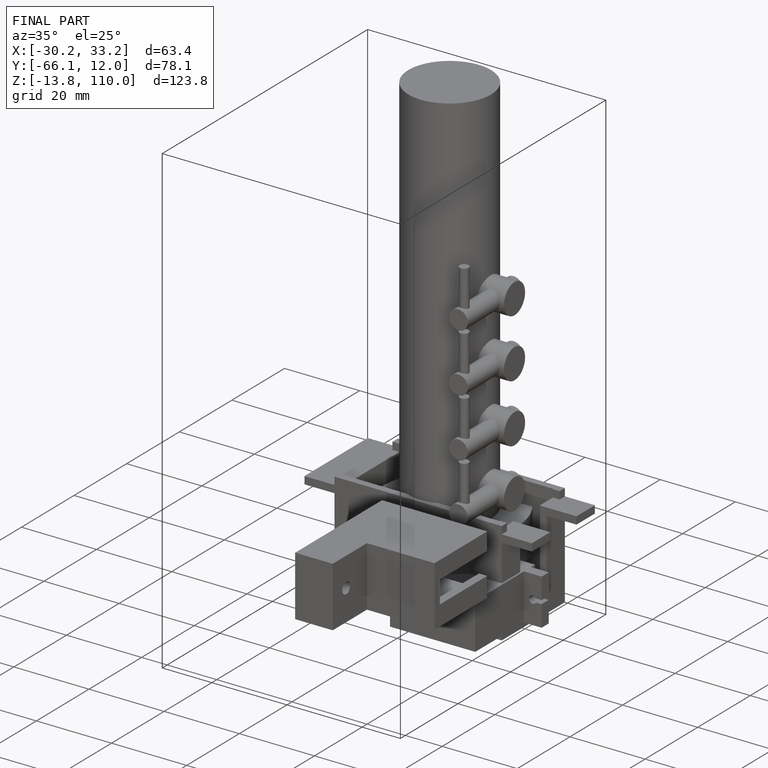
[diagram: finished part — iso view with bounding-box wireframe]
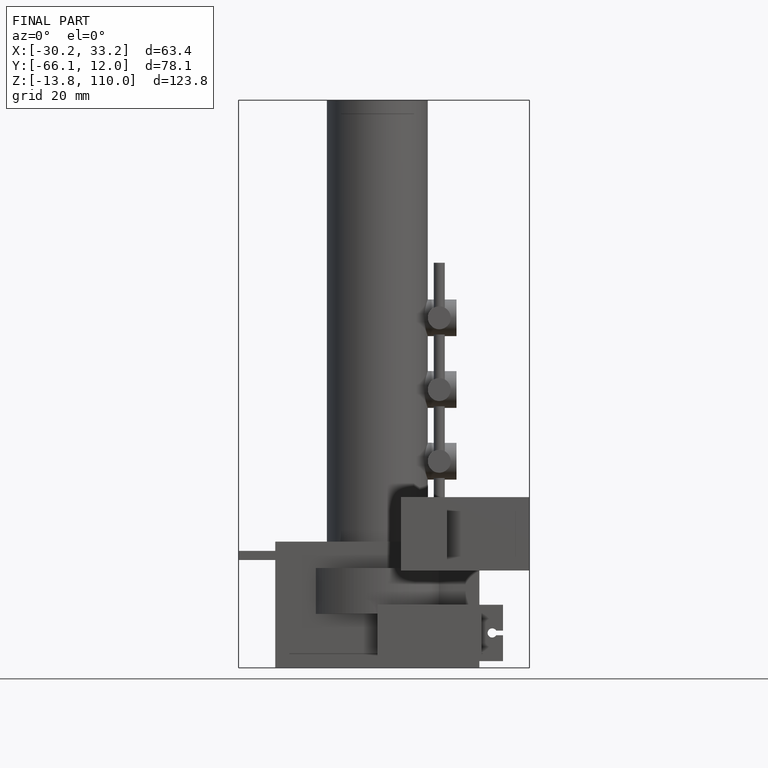
[diagram: finished part — front view with bounding-box wireframe]
